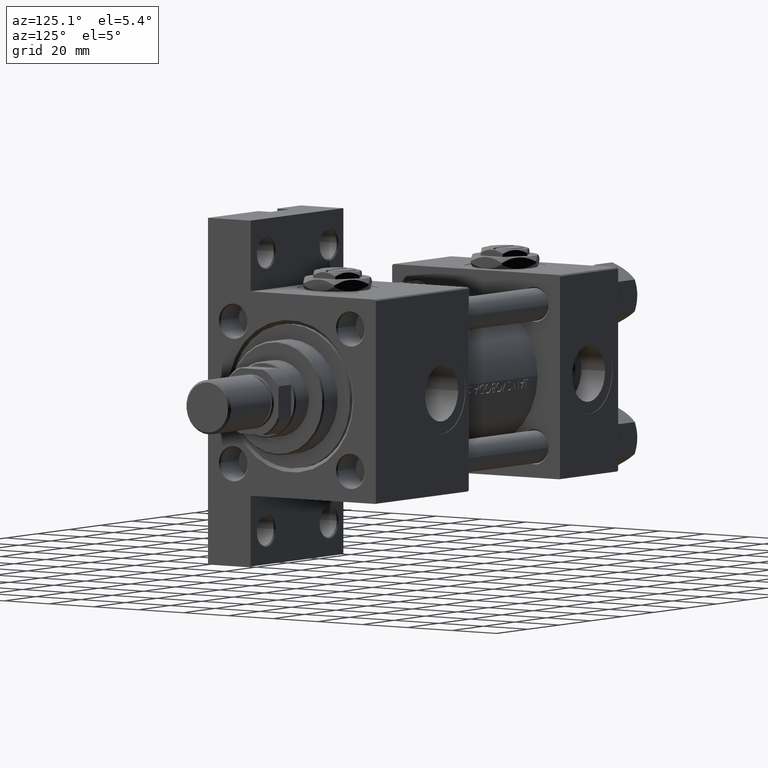
[diagram: clean part render]
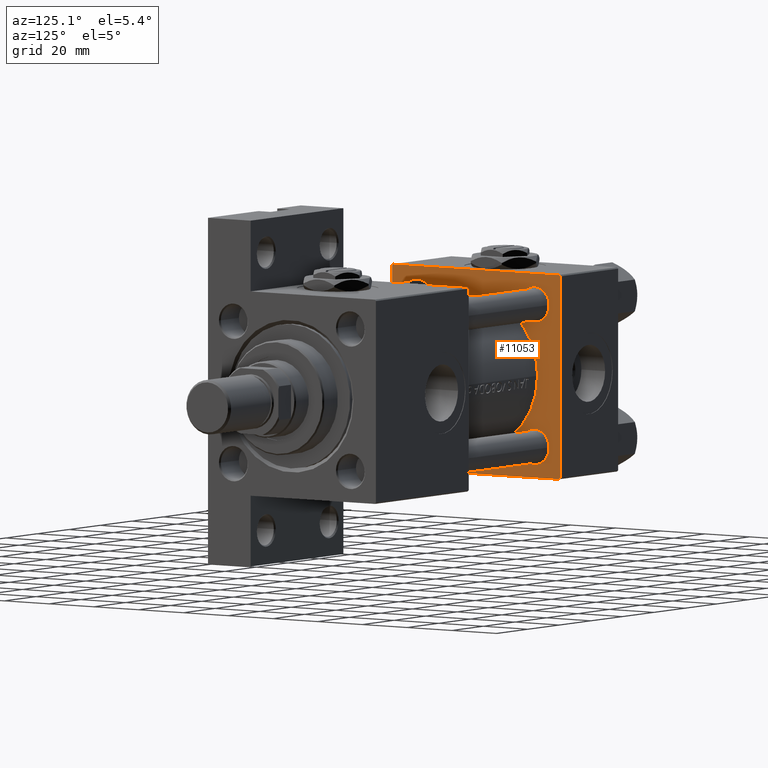
[diagram: same view with one face highlighted and labeled with its STEP entity id]
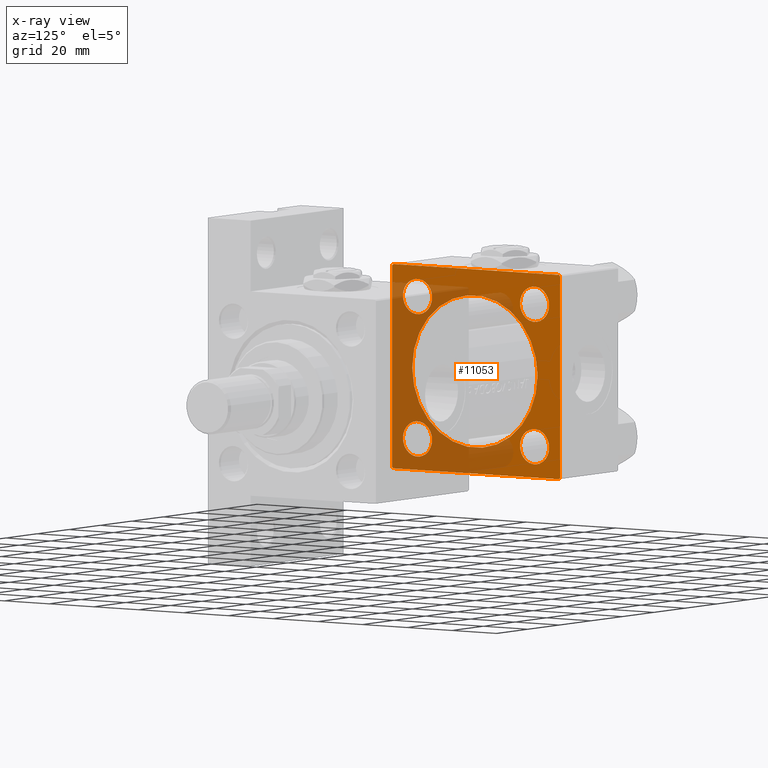
[diagram: x-ray of the same camera — body ghosted, the highlighted face saturated]
A machine part, auxiliary view. The second image highlights one B-rep face of the part: STEP entity #11053.
The next image is the same camera in x-ray: the body ghosted, the highlighted face saturated — about 47% of this face is hidden behind the body in this view.
In plain terms, the highlighted planar face has unit normal (-1, 0, -0).
Its self-contained STEP definition (entity closure, byte-faithful):
#379 = EDGE_LOOP ( 'NONE', ( #20411, #5185 ) ) ;
#579 = FACE_BOUND ( 'NONE', #5193, .T. ) ;
#677 = CIRCLE ( 'NONE', #5516, 6.500000000000002665 ) ;
#826 = FACE_BOUND ( 'NONE', #379, .T. ) ;
#1076 = DIRECTION ( 'NONE',  ( -0.000000000000000000, 0.000000000000000000, 1.000000000000000000 ) ) ;
#2378 = CARTESIAN_POINT ( 'NONE',  ( 37.00000000000000000, 26.14999999999999858, 26.15000000000000213 ) ) ;
#2686 = VECTOR ( 'NONE', #11481, 1000.000000000000114 ) ;
#2843 = DIRECTION ( 'NONE',  ( 0.000000000000000000, 0.000000000000000000, 1.000000000000000000 ) ) ;
#2936 = ORIENTED_EDGE ( 'NONE', *, *, #21314, .T. ) ;
#2993 = AXIS2_PLACEMENT_3D ( 'NONE', #2378, #14322, #13820 ) ;
#3080 = LINE ( 'NONE', #3328, #9614 ) ;
#3328 = CARTESIAN_POINT ( 'NONE',  ( 37.00000000000000000, -37.50000000000000711, 37.49999999999999289 ) ) ;
#3551 = DIRECTION ( 'NONE',  ( 0.000000000000000000, 0.000000000000000000, -1.000000000000000000 ) ) ;
#4375 = CARTESIAN_POINT ( 'NONE',  ( 37.00000000000000000, 0.000000000000000000, 0.000000000000000000 ) ) ;
#4391 = CARTESIAN_POINT ( 'NONE',  ( 37.00000000000000000, -26.14999999999999147, 26.15000000000000924 ) ) ;
#5185 = ORIENTED_EDGE ( 'NONE', *, *, #29915, .T. ) ;
#5189 = CARTESIAN_POINT ( 'NONE',  ( 37.00000000000000000, -26.14999999999999147, 19.65000000000000213 ) ) ;
#5193 = EDGE_LOOP ( 'NONE', ( #38876, #36796 ) ) ;
#5262 = EDGE_CURVE ( 'NONE', #18154, #36838, #35001, .T. ) ;
#5516 = AXIS2_PLACEMENT_3D ( 'NONE', #33519, #48993, #10435 ) ;
#5674 = ORIENTED_EDGE ( 'NONE', *, *, #47093, .T. ) ;
#5920 = CARTESIAN_POINT ( 'NONE',  ( 37.00000000000000000, -26.14999999999999147, 26.15000000000000924 ) ) ;
#6291 = VERTEX_POINT ( 'NONE', #31564 ) ;
#6835 = CIRCLE ( 'NONE', #16569, 28.00000000000000000 ) ;
#7388 = CARTESIAN_POINT ( 'NONE',  ( 37.00000000000000000, 26.14999999999999858, 26.15000000000000213 ) ) ;
#7777 = AXIS2_PLACEMENT_3D ( 'NONE', #32236, #47711, #17025 ) ;
#7852 = CARTESIAN_POINT ( 'NONE',  ( 37.00000000000000000, -26.14999999999999147, -32.65000000000001279 ) ) ;
#7918 = CIRCLE ( 'NONE', #34662, 6.500000000000030198 ) ;
#8176 = FACE_BOUND ( 'NONE', #17372, .T. ) ;
#9212 = EDGE_CURVE ( 'NONE', #18154, #14644, #23897, .T. ) ;
#9614 = VECTOR ( 'NONE', #13343, 1000.000000000000000 ) ;
#9922 = EDGE_CURVE ( 'NONE', #11998, #29339, #39684, .T. ) ;
#9924 = ORIENTED_EDGE ( 'NONE', *, *, #9212, .T. ) ;
#10435 = DIRECTION ( 'NONE',  ( 0.000000000000000000, 0.000000000000000000, 1.000000000000000000 ) ) ;
#11053 = ADVANCED_FACE ( 'NONE', ( #579, #47499, #8176, #826, #43679, #15818 ), #16568, .F. ) ;
#11205 = DIRECTION ( 'NONE',  ( -0.000000000000000000, 0.7071067811865474617, 0.7071067811865474617 ) ) ;
#11420 = EDGE_CURVE ( 'NONE', #45371, #22175, #39810, .T. ) ;
#11481 = DIRECTION ( 'NONE',  ( 0.000000000000000000, -0.7071067811865474617, 0.7071067811865474617 ) ) ;
#11596 = LINE ( 'NONE', #46335, #18448 ) ;
#11917 = EDGE_CURVE ( 'NONE', #28473, #22175, #20245, .T. ) ;
#11998 = VERTEX_POINT ( 'NONE', #23229 ) ;
#12724 = CIRCLE ( 'NONE', #15190, 6.500000000000002665 ) ;
#13246 = CARTESIAN_POINT ( 'NONE',  ( 37.00000000000000000, -37.50000000000000711, 36.99999999999999289 ) ) ;
#13343 = DIRECTION ( 'NONE',  ( 0.000000000000000000, 9.251858538542971581E-17, -1.000000000000000000 ) ) ;
#13555 = VERTEX_POINT ( 'NONE', #31918 ) ;
#13820 = DIRECTION ( 'NONE',  ( 0.000000000000000000, 0.000000000000000000, 1.000000000000000000 ) ) ;
#14286 = DIRECTION ( 'NONE',  ( -1.000000000000000000, 0.000000000000000000, -0.000000000000000000 ) ) ;
#14322 = DIRECTION ( 'NONE',  ( -1.000000000000000000, 0.000000000000000000, -0.000000000000000000 ) ) ;
#14338 = CARTESIAN_POINT ( 'NONE',  ( 37.00000000000000000, 26.14999999999999858, -32.65000000000003411 ) ) ;
#14574 = CARTESIAN_POINT ( 'NONE',  ( 37.00000000000000000, -26.14999999999999147, 32.65000000000001990 ) ) ;
#14612 = ORIENTED_EDGE ( 'NONE', *, *, #27173, .F. ) ;
#14625 = CIRCLE ( 'NONE', #49447, 6.500000000000030198 ) ;
#14644 = VERTEX_POINT ( 'NONE', #37345 ) ;
#15190 = AXIS2_PLACEMENT_3D ( 'NONE', #21015, #47899, #35991 ) ;
#15215 = EDGE_CURVE ( 'NONE', #17306, #33642, #12724, .T. ) ;
#15339 = EDGE_CURVE ( 'NONE', #14644, #11998, #11596, .T. ) ;
#15806 = CIRCLE ( 'NONE', #36034, 6.500000000000008882 ) ;
#15818 = FACE_OUTER_BOUND ( 'NONE', #36105, .T. ) ;
#16310 = DIRECTION ( 'NONE',  ( -1.000000000000000000, 0.000000000000000000, -0.000000000000000000 ) ) ;
#16568 = PLANE ( 'NONE',  #41622 ) ;
#16569 = AXIS2_PLACEMENT_3D ( 'NONE', #17245, #36014, #39570 ) ;
#17025 = DIRECTION ( 'NONE',  ( 0.000000000000000000, 0.000000000000000000, 1.000000000000000000 ) ) ;
#17119 = DIRECTION ( 'NONE',  ( -1.000000000000000000, 0.000000000000000000, -0.000000000000000000 ) ) ;
#17245 = CARTESIAN_POINT ( 'NONE',  ( 37.00000000000000000, 6.123233995736772199E-17, -0.5000000000000004441 ) ) ;
#17306 = VERTEX_POINT ( 'NONE', #46570 ) ;
#17314 = ORIENTED_EDGE ( 'NONE', *, *, #31405, .T. ) ;
#17372 = EDGE_LOOP ( 'NONE', ( #34903, #2936 ) ) ;
#18154 = VERTEX_POINT ( 'NONE', #20945 ) ;
#18333 = DIRECTION ( 'NONE',  ( 0.000000000000000000, 0.000000000000000000, 1.000000000000000000 ) ) ;
#18448 = VECTOR ( 'NONE', #26576, 1000.000000000000000 ) ;
#19886 = DIRECTION ( 'NONE',  ( -1.000000000000000000, 0.000000000000000000, -0.000000000000000000 ) ) ;
#20026 = CIRCLE ( 'NONE', #2993, 6.500000000000030198 ) ;
#20041 = CARTESIAN_POINT ( 'NONE',  ( 37.00000000000000000, 36.99999999999997868, -37.50000000000000000 ) ) ;
#20245 = LINE ( 'NONE', #28860, #21419 ) ;
#20411 = ORIENTED_EDGE ( 'NONE', *, *, #41417, .T. ) ;
#20424 = AXIS2_PLACEMENT_3D ( 'NONE', #33530, #45188, #36843 ) ;
#20919 = EDGE_CURVE ( 'NONE', #13555, #21357, #6835, .T. ) ;
#20945 = CARTESIAN_POINT ( 'NONE',  ( 37.00000000000000000, 37.49999999999999289, 37.00000000000000000 ) ) ;
#21015 = CARTESIAN_POINT ( 'NONE',  ( 37.00000000000000000, -26.14999999999999147, -26.15000000000000924 ) ) ;
#21197 = ORIENTED_EDGE ( 'NONE', *, *, #15339, .T. ) ;
#21293 = VERTEX_POINT ( 'NONE', #29271 ) ;
#21314 = EDGE_CURVE ( 'NONE', #35137, #45727, #15806, .T. ) ;
#21337 = ORIENTED_EDGE ( 'NONE', *, *, #36271, .T. ) ;
#21357 = VERTEX_POINT ( 'NONE', #28296 ) ;
#21419 = VECTOR ( 'NONE', #48858, 1000.000000000000000 ) ;
#22175 = VERTEX_POINT ( 'NONE', #23045 ) ;
#23045 = CARTESIAN_POINT ( 'NONE',  ( 37.00000000000000000, -37.00000000000002132, -37.50000000000000711 ) ) ;
#23229 = CARTESIAN_POINT ( 'NONE',  ( 37.00000000000000000, -37.00000000000000711, 37.49999999999999289 ) ) ;
#23743 = CARTESIAN_POINT ( 'NONE',  ( 37.00000000000000000, 37.49999999999999289, -36.99999999999998579 ) ) ;
#23897 = LINE ( 'NONE', #32006, #2686 ) ;
#24734 = DIRECTION ( 'NONE',  ( 0.000000000000000000, 0.000000000000000000, 1.000000000000000000 ) ) ;
#26576 = DIRECTION ( 'NONE',  ( 0.000000000000000000, -1.000000000000000000, -9.251858538542971581E-17 ) ) ;
#27173 = EDGE_CURVE ( 'NONE', #21357, #13555, #29657, .T. ) ;
#28296 = CARTESIAN_POINT ( 'NONE',  ( 37.00000000000000000, 3.490243377569955667E-15, -28.50000000000000000 ) ) ;
#28473 = VERTEX_POINT ( 'NONE', #20041 ) ;
#28860 = CARTESIAN_POINT ( 'NONE',  ( 37.00000000000000000, 37.49999999999999289, -37.50000000000000000 ) ) ;
#29271 = CARTESIAN_POINT ( 'NONE',  ( 37.00000000000000000, 26.14999999999999858, 19.64999999999997016 ) ) ;
#29339 = VERTEX_POINT ( 'NONE', #13246 ) ;
#29356 = CIRCLE ( 'NONE', #20424, 6.500000000000030198 ) ;
#29657 = CIRCLE ( 'NONE', #7777, 28.00000000000000000 ) ;
#29915 = EDGE_CURVE ( 'NONE', #6291, #21293, #20026, .T. ) ;
#31329 = CARTESIAN_POINT ( 'NONE',  ( 37.00000000000000000, -37.50000000000000711, 36.99999999999999289 ) ) ;
#31363 = EDGE_CURVE ( 'NONE', #45727, #35137, #37069, .T. ) ;
#31405 = EDGE_CURVE ( 'NONE', #41105, #34260, #7918, .T. ) ;
#31564 = CARTESIAN_POINT ( 'NONE',  ( 37.00000000000000000, 26.14999999999999858, 32.65000000000004121 ) ) ;
#31918 = CARTESIAN_POINT ( 'NONE',  ( 37.00000000000000000, 6.123233995736772199E-17, 27.50000000000000000 ) ) ;
#31958 = VECTOR ( 'NONE', #35762, 1000.000000000000000 ) ;
#32006 = CARTESIAN_POINT ( 'NONE',  ( 37.00000000000000000, 36.99999999999999289, 37.50000000000000000 ) ) ;
#32236 = CARTESIAN_POINT ( 'NONE',  ( 37.00000000000000000, 6.123233995736772199E-17, -0.5000000000000004441 ) ) ;
#32414 = ORIENTED_EDGE ( 'NONE', *, *, #9922, .T. ) ;
#33033 = LINE ( 'NONE', #48503, #35843 ) ;
#33519 = CARTESIAN_POINT ( 'NONE',  ( 37.00000000000000000, -26.14999999999999147, -26.15000000000000924 ) ) ;
#33530 = CARTESIAN_POINT ( 'NONE',  ( 37.00000000000000000, 26.14999999999999858, -26.15000000000000213 ) ) ;
#33642 = VERTEX_POINT ( 'NONE', #7852 ) ;
#34260 = VERTEX_POINT ( 'NONE', #42728 ) ;
#34662 = AXIS2_PLACEMENT_3D ( 'NONE', #45446, #14286, #2843 ) ;
#34903 = ORIENTED_EDGE ( 'NONE', *, *, #31363, .T. ) ;
#35001 = LINE ( 'NONE', #38300, #40754 ) ;
#35137 = VERTEX_POINT ( 'NONE', #14574 ) ;
#35441 = EDGE_CURVE ( 'NONE', #33642, #17306, #677, .T. ) ;
#35762 = DIRECTION ( 'NONE',  ( 0.000000000000000000, 0.7071067811865524577, -0.7071067811865426878 ) ) ;
#35843 = VECTOR ( 'NONE', #11205, 1000.000000000000114 ) ;
#35991 = DIRECTION ( 'NONE',  ( 0.000000000000000000, 0.000000000000000000, 1.000000000000000000 ) ) ;
#36014 = DIRECTION ( 'NONE',  ( 1.000000000000000000, -0.000000000000000000, 0.000000000000000000 ) ) ;
#36034 = AXIS2_PLACEMENT_3D ( 'NONE', #5920, #17119, #24734 ) ;
#36105 = EDGE_LOOP ( 'NONE', ( #45276, #5674, #46552, #9924, #21197, #32414, #21337, #40540 ) ) ;
#36139 = DIRECTION ( 'NONE',  ( -0.000000000000000000, -0.7071067811865474617, -0.7071067811865474617 ) ) ;
#36149 = ORIENTED_EDGE ( 'NONE', *, *, #20919, .F. ) ;
#36269 = CARTESIAN_POINT ( 'NONE',  ( 37.00000000000000000, -37.00000000000002132, -37.50000000000000711 ) ) ;
#36271 = EDGE_CURVE ( 'NONE', #29339, #45371, #3080, .T. ) ;
#36796 = ORIENTED_EDGE ( 'NONE', *, *, #15215, .T. ) ;
#36838 = VERTEX_POINT ( 'NONE', #23743 ) ;
#36843 = DIRECTION ( 'NONE',  ( 0.000000000000000000, 0.000000000000000000, 1.000000000000000000 ) ) ;
#37069 = CIRCLE ( 'NONE', #40327, 6.500000000000008882 ) ;
#37252 = CARTESIAN_POINT ( 'NONE',  ( 37.00000000000000000, -37.50000000000000000, -37.00000000000003553 ) ) ;
#37345 = CARTESIAN_POINT ( 'NONE',  ( 37.00000000000000000, 36.99999999999999289, 37.50000000000000000 ) ) ;
#38300 = CARTESIAN_POINT ( 'NONE',  ( 37.00000000000000000, 37.49999999999999289, 37.50000000000000000 ) ) ;
#38594 = DIRECTION ( 'NONE',  ( 0.000000000000000000, 0.000000000000000000, 1.000000000000000000 ) ) ;
#38876 = ORIENTED_EDGE ( 'NONE', *, *, #35441, .T. ) ;
#39087 = DIRECTION ( 'NONE',  ( -1.000000000000000000, 0.000000000000000000, -0.000000000000000000 ) ) ;
#39570 = DIRECTION ( 'NONE',  ( 0.000000000000000000, 0.000000000000000000, 1.000000000000000000 ) ) ;
#39684 = LINE ( 'NONE', #31329, #49702 ) ;
#39810 = LINE ( 'NONE', #36269, #31958 ) ;
#40327 = AXIS2_PLACEMENT_3D ( 'NONE', #4391, #19886, #18333 ) ;
#40540 = ORIENTED_EDGE ( 'NONE', *, *, #11420, .T. ) ;
#40754 = VECTOR ( 'NONE', #3551, 1000.000000000000000 ) ;
#40762 = EDGE_LOOP ( 'NONE', ( #17314, #48834 ) ) ;
#41105 = VERTEX_POINT ( 'NONE', #14338 ) ;
#41417 = EDGE_CURVE ( 'NONE', #21293, #6291, #14625, .T. ) ;
#41622 = AXIS2_PLACEMENT_3D ( 'NONE', #4375, #16310, #1076 ) ;
#42728 = CARTESIAN_POINT ( 'NONE',  ( 37.00000000000000000, 26.14999999999999858, -19.64999999999997371 ) ) ;
#43679 = FACE_BOUND ( 'NONE', #48802, .T. ) ;
#45188 = DIRECTION ( 'NONE',  ( -1.000000000000000000, 0.000000000000000000, -0.000000000000000000 ) ) ;
#45276 = ORIENTED_EDGE ( 'NONE', *, *, #11917, .F. ) ;
#45371 = VERTEX_POINT ( 'NONE', #37252 ) ;
#45446 = CARTESIAN_POINT ( 'NONE',  ( 37.00000000000000000, 26.14999999999999858, -26.15000000000000213 ) ) ;
#45727 = VERTEX_POINT ( 'NONE', #5189 ) ;
#46335 = CARTESIAN_POINT ( 'NONE',  ( 37.00000000000000000, 37.49999999999999289, 37.50000000000000000 ) ) ;
#46552 = ORIENTED_EDGE ( 'NONE', *, *, #5262, .F. ) ;
#46570 = CARTESIAN_POINT ( 'NONE',  ( 37.00000000000000000, -26.14999999999999147, -19.65000000000000924 ) ) ;
#47036 = EDGE_CURVE ( 'NONE', #34260, #41105, #29356, .T. ) ;
#47093 = EDGE_CURVE ( 'NONE', #28473, #36838, #33033, .T. ) ;
#47499 = FACE_BOUND ( 'NONE', #40762, .T. ) ;
#47711 = DIRECTION ( 'NONE',  ( 1.000000000000000000, -0.000000000000000000, 0.000000000000000000 ) ) ;
#47899 = DIRECTION ( 'NONE',  ( -1.000000000000000000, 0.000000000000000000, -0.000000000000000000 ) ) ;
#48503 = CARTESIAN_POINT ( 'NONE',  ( 37.00000000000000000, 37.49999999999999289, -36.99999999999998579 ) ) ;
#48802 = EDGE_LOOP ( 'NONE', ( #36149, #14612 ) ) ;
#48834 = ORIENTED_EDGE ( 'NONE', *, *, #47036, .T. ) ;
#48858 = DIRECTION ( 'NONE',  ( 0.000000000000000000, -1.000000000000000000, -9.251858538542972814E-17 ) ) ;
#48993 = DIRECTION ( 'NONE',  ( -1.000000000000000000, 0.000000000000000000, -0.000000000000000000 ) ) ;
#49447 = AXIS2_PLACEMENT_3D ( 'NONE', #7388, #39087, #38594 ) ;
#49702 = VECTOR ( 'NONE', #36139, 1000.000000000000114 ) ;